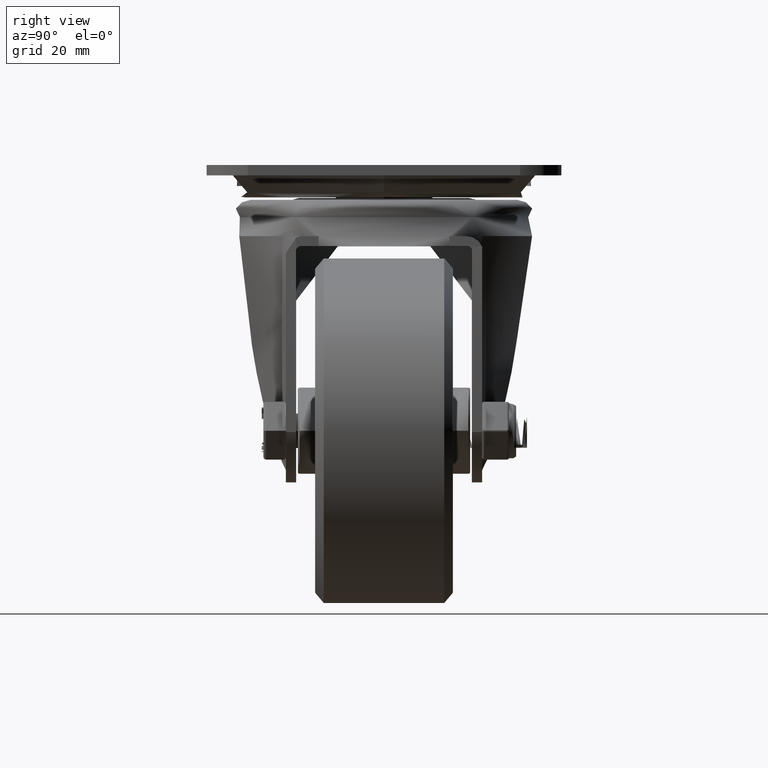
[diagram: clean part render]
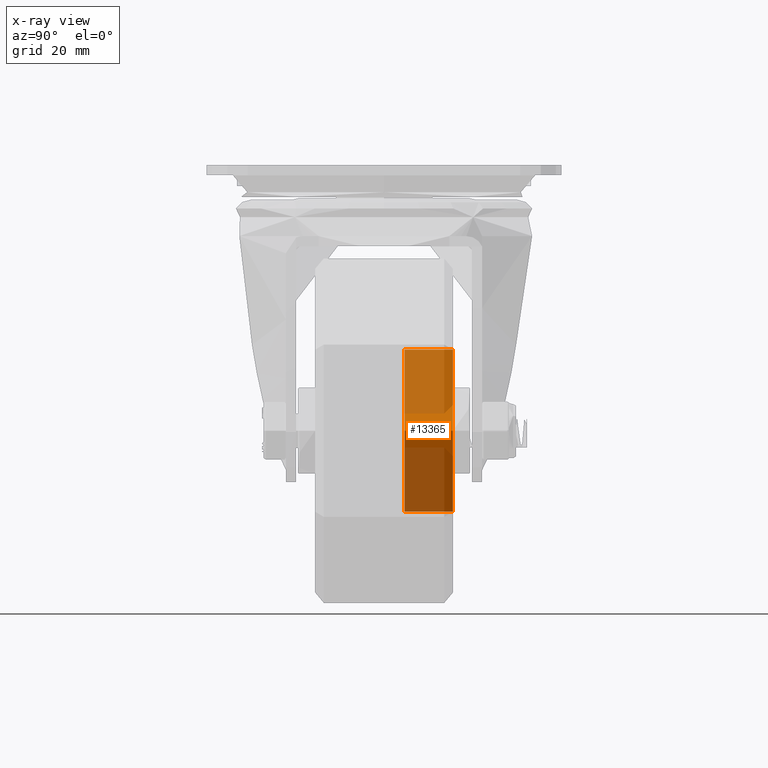
[diagram: x-ray — body ghosted, one internal face saturated and labeled with its STEP entity id]
A machine part, right view, then the same camera in x-ray: the body is ghosted and one INTERNAL B-rep face — a face not visible from any outside direction — is saturated and labeled: STEP entity #13365.
In plain terms, the highlighted cylindrical surface (bore or boss wall) has radius 23.5 mm, axis along (0, -1, 0).
Its self-contained STEP definition (entity closure, byte-faithful):
#1532=CYLINDRICAL_SURFACE('',#14325,23.5);
#1724=FACE_OUTER_BOUND('',#2513,.T.);
#2513=EDGE_LOOP('',(#9284,#9285,#9286,#9287));
#3396=LINE('',#18664,#4418);
#4418=VECTOR('',#15454,23.5);
#5443=CIRCLE('',#14326,23.5);
#5444=CIRCLE('',#14327,23.5);
#5885=VERTEX_POINT('',#18661);
#5886=VERTEX_POINT('',#18663);
#7226=EDGE_CURVE('',#5885,#5885,#5443,.T.);
#7227=EDGE_CURVE('',#5885,#5886,#3396,.T.);
#7228=EDGE_CURVE('',#5886,#5886,#5444,.T.);
#9284=ORIENTED_EDGE('',*,*,#7226,.F.);
#9285=ORIENTED_EDGE('',*,*,#7227,.T.);
#9286=ORIENTED_EDGE('',*,*,#7228,.T.);
#9287=ORIENTED_EDGE('',*,*,#7227,.F.);
#13365=ADVANCED_FACE('',(#1724),#1532,.F.);
#14325=AXIS2_PLACEMENT_3D('',#18660,#15450,#15451);
#14326=AXIS2_PLACEMENT_3D('',#18662,#15452,#15453);
#14327=AXIS2_PLACEMENT_3D('',#18665,#15455,#15456);
#15450=DIRECTION('center_axis',(-1.,0.,0.));
#15451=DIRECTION('ref_axis',(0.,2.53776701626685E-17,1.));
#15452=DIRECTION('center_axis',(-1.,0.,0.));
#15453=DIRECTION('ref_axis',(0.,2.53776701626685E-17,1.));
#15454=DIRECTION('',(-1.,0.,0.));
#15455=DIRECTION('center_axis',(-1.,0.,0.));
#15456=DIRECTION('ref_axis',(0.,2.53776701626685E-17,1.));
#18660=CARTESIAN_POINT('Origin',(12.9999999999865,0.,0.));
#18661=CARTESIAN_POINT('',(19.9999999999865,2.28154472917357E-15,-23.5));
#18662=CARTESIAN_POINT('Origin',(19.9999999999865,0.,0.));
#18663=CARTESIAN_POINT('',(5.99999999998646,2.28154472917357E-15,-23.5));
#18664=CARTESIAN_POINT('',(12.9999999999865,-3.47429522681899E-15,-23.5));
#18665=CARTESIAN_POINT('Origin',(5.99999999998646,0.,0.));